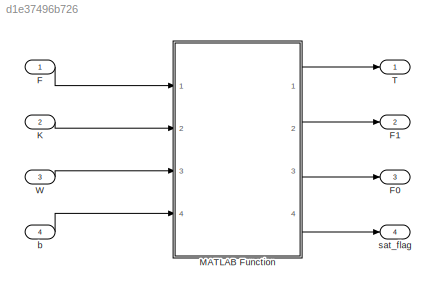
MODEL slx_d1e37496b726
KIND model
CONFIG AbsTol = auto
CONFIG EnableMultiTasking = off
CONFIG FixedStep = 1/400
CONFIG MaxStep = auto
CONFIG MinStep = auto
CONFIG RelTol = 1e-3
CONFIG SampleTimeConstraint = Unconstrained
CONFIG SolverName = FixedStepAuto
CONFIG StartTime = 0.0
CONFIG StopTime = 10.0
BLOCK [Inport] F
  PortDimensions = [4,1]
BLOCK [Outport] F0
  Port = 3
BLOCK [Outport] F1
  Port = 2
BLOCK [Inport] K
  Port = 2
  PortDimensions = [4,4]
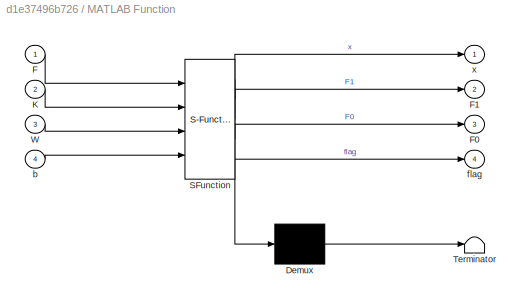
BLOCK [SubSystem] MATLAB Function
  ErrorFcn = Stateflow.Translate.translate
  PermitHierarchicalResolution = ExplicitOnly
  Ports = [4, 4]
  RequestExecContextInheritance = off
  SFBlockType = MATLAB Function
  TreatAsAtomicUnit = on
BLOCK [Demux] MATLAB Function/ Demux 
  Outputs = 1
  Ports = [1, 1]
BLOCK [S-Function] MATLAB Function/ SFunction 
  EnableBusSupport = on
  FunctionName = sf_sfun
  PortCounts = [4 5]
  Ports = [4, 5]
  SFcnIsStateOwnerBlock = off
  SFunctionDeploymentMode = off
  Tag = Stateflow S-Function 1
BLOCK [Terminator] MATLAB Function/ Terminator 
BLOCK [Inport] MATLAB Function/F
BLOCK [Outport] MATLAB Function/F0
  Port = 3
BLOCK [Outport] MATLAB Function/F1
  Port = 2
BLOCK [Inport] MATLAB Function/K
  Port = 2
BLOCK [Inport] MATLAB Function/W
  Port = 3
BLOCK [Inport] MATLAB Function/b
  Port = 4
BLOCK [Outport] MATLAB Function/flag
  Port = 4
BLOCK [Outport] MATLAB Function/x
BLOCK [Outport] T
BLOCK [Inport] W
  Port = 3
  PortDimensions = [4,1]
BLOCK [Inport] b
  Port = 4
  PortDimensions = [4,1]
BLOCK [Outport] sat_flag
  Port = 4
LINE F:1 -> MATLAB Function:1
LINE K:1 -> MATLAB Function:2
LINE MATLAB Function:1 -> T:1
LINE MATLAB Function:2 -> F1:1
LINE MATLAB Function:3 -> F0:1
LINE MATLAB Function:4 -> sat_flag:1
LINE W:1 -> MATLAB Function:3
LINE b:1 -> MATLAB Function:4
CHART MATLAB Function states=1 transitions=1
  STATE_LABEL 'eML_blk_kernel()'
  STATE_LABEL "SCRIPT:\nfunction [x, F1, F0, flag] = mixer_solver(F, K, W, b)\nif sum(sum(K)) < 0.001\n    K = [-0.25 0.25 0.25 -0.25;\n         0.25 0.25 -0.25 -0.25;\n         0.25 -0.25 0.25 -0.25;\n         0.25 0.25 0.25 0.25];\nend\nif sum(W) < 0.001\n    W = diag([1 1 1 1]);\nelse\n    W = diag(W);\nend\n\nlb = b(1) * ones(4,1);\nub = b(2) * ones(4,1);\n\nF0 = F;\nP = 2 * K' * W * K;\nq = (-2 * K' * W * F);\n\nopts = optimopt...<+178ch>"
CHART  states=0 transitions=0
